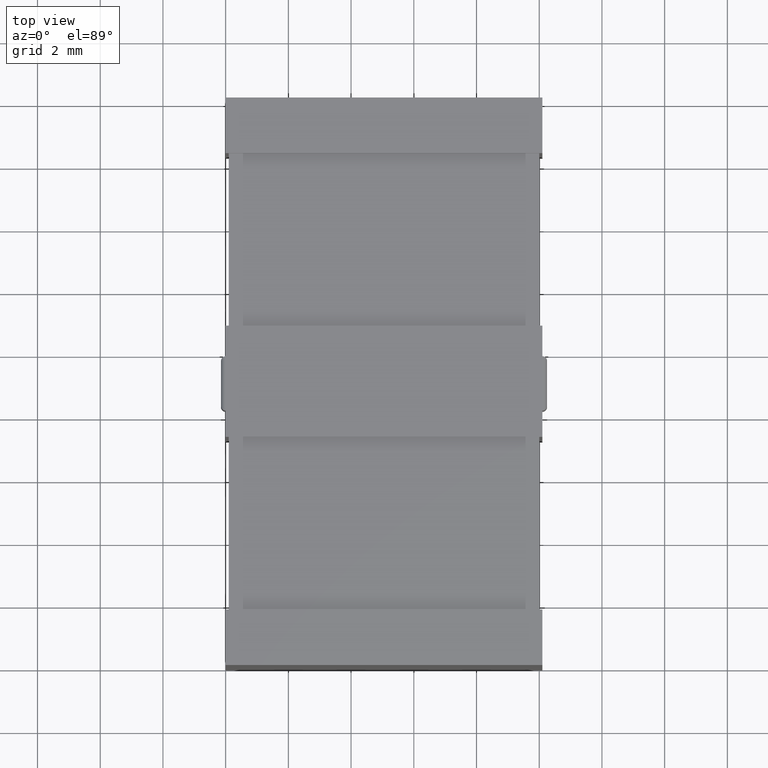
[diagram: clean part render]
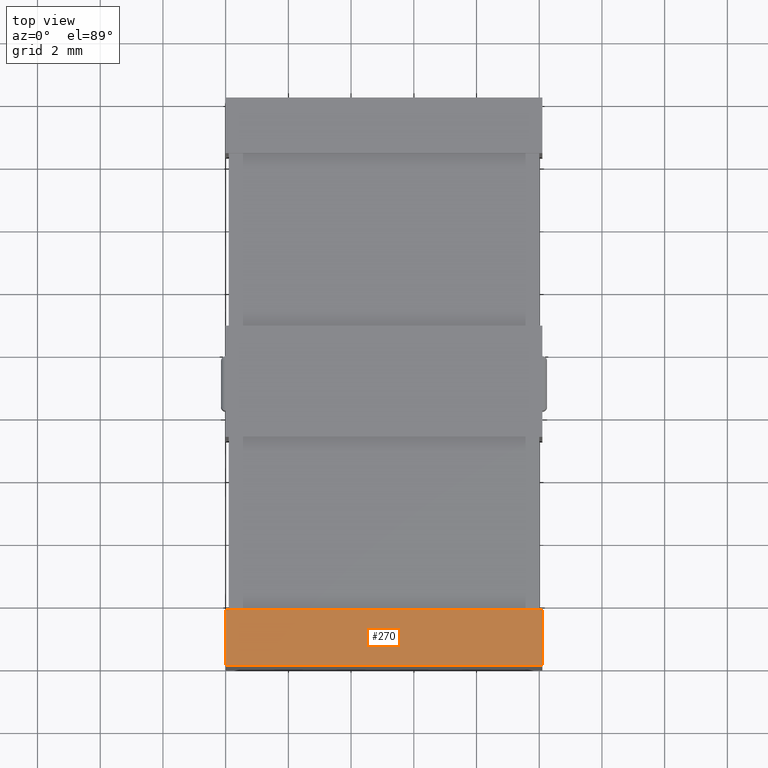
[diagram: same view with one face highlighted and labeled with its STEP entity id]
A machine part, top view. The second image highlights one B-rep face of the part: STEP entity #270.
In plain terms, the highlighted planar face has unit normal (0, 0, -1).
Its self-contained STEP definition (entity closure, byte-faithful):
#14 = FACE_OUTER_BOUND ( 'NONE', #2063, .T. ) ;
#162 = CARTESIAN_POINT ( 'NONE',  ( 1.999382857223951600E-015, 1.773799999999999800, 10.40000000000000000 ) ) ;
#218 = PLANE ( 'NONE',  #1841 ) ;
#223 = VERTEX_POINT ( 'NONE', #947 ) ;
#270 = ADVANCED_FACE ( 'NONE', ( #14 ), #218, .F. ) ;
#285 = ORIENTED_EDGE ( 'NONE', *, *, #1328, .T. ) ;
#436 = EDGE_CURVE ( 'NONE', #223, #3327, #888, .T. ) ;
#442 = DIRECTION ( 'NONE',  ( -1.000000000000000000, 0.0000000000000000000, -0.0000000000000000000 ) ) ;
#443 = CARTESIAN_POINT ( 'NONE',  ( 0.0000000000000000000, 0.0000000000000000000, 10.40000000000000000 ) ) ;
#451 = CARTESIAN_POINT ( 'NONE',  ( 0.0000000000000000000, 0.0000000000000000000, 10.40000000000000000 ) ) ;
#461 = EDGE_CURVE ( 'NONE', #1512, #3327, #2870, .T. ) ;
#478 = DIRECTION ( 'NONE',  ( 0.0000000000000000000, 0.0000000000000000000, -1.000000000000000000 ) ) ;
#763 = DIRECTION ( 'NONE',  ( -0.0000000000000000000, -1.000000000000000000, -0.0000000000000000000 ) ) ;
#774 = VECTOR ( 'NONE', #2130, 1000.000000000000000 ) ;
#888 = LINE ( 'NONE', #162, #2196 ) ;
#947 = CARTESIAN_POINT ( 'NONE',  ( 0.0000000000000000000, 1.773799999999999400, 10.40000000000000000 ) ) ;
#1270 = VERTEX_POINT ( 'NONE', #1447 ) ;
#1276 = ORIENTED_EDGE ( 'NONE', *, *, #2157, .T. ) ;
#1295 = VECTOR ( 'NONE', #1475, 1000.000000000000000 ) ;
#1328 = EDGE_CURVE ( 'NONE', #223, #1270, #2351, .T. ) ;
#1376 = LINE ( 'NONE', #443, #1295 ) ;
#1447 = CARTESIAN_POINT ( 'NONE',  ( 0.0000000000000000000, 0.0000000000000000000, 10.40000000000000000 ) ) ;
#1475 = DIRECTION ( 'NONE',  ( 1.000000000000000000, 0.0000000000000000000, 0.0000000000000000000 ) ) ;
#1512 = VERTEX_POINT ( 'NONE', #2545 ) ;
#1841 = AXIS2_PLACEMENT_3D ( 'NONE', #2029, #478, #442 ) ;
#1871 = CARTESIAN_POINT ( 'NONE',  ( 10.10000000000000000, 0.0000000000000000000, 10.40000000000000000 ) ) ;
#1879 = CARTESIAN_POINT ( 'NONE',  ( 10.09999999999999800, 1.773799999999999800, 10.40000000000000000 ) ) ;
#2029 = CARTESIAN_POINT ( 'NONE',  ( 0.0000000000000000000, 0.0000000000000000000, 10.40000000000000000 ) ) ;
#2059 = VECTOR ( 'NONE', #763, 1000.000000000000000 ) ;
#2063 = EDGE_LOOP ( 'NONE', ( #2510, #2253, #285, #1276 ) ) ;
#2130 = DIRECTION ( 'NONE',  ( 0.0000000000000000000, 1.000000000000000000, 0.0000000000000000000 ) ) ;
#2157 = EDGE_CURVE ( 'NONE', #1270, #1512, #1376, .T. ) ;
#2196 = VECTOR ( 'NONE', #3158, 1000.000000000000000 ) ;
#2253 = ORIENTED_EDGE ( 'NONE', *, *, #436, .F. ) ;
#2351 = LINE ( 'NONE', #451, #2059 ) ;
#2510 = ORIENTED_EDGE ( 'NONE', *, *, #461, .T. ) ;
#2545 = CARTESIAN_POINT ( 'NONE',  ( 10.10000000000000000, 0.0000000000000000000, 10.40000000000000000 ) ) ;
#2870 = LINE ( 'NONE', #1871, #774 ) ;
#3158 = DIRECTION ( 'NONE',  ( 1.000000000000000000, 0.0000000000000000000, 0.0000000000000000000 ) ) ;
#3327 = VERTEX_POINT ( 'NONE', #1879 ) ;